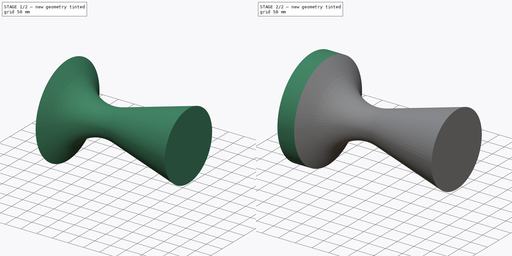
[diagram: build sequence overview — one tinted view per stage of 2, left to right]
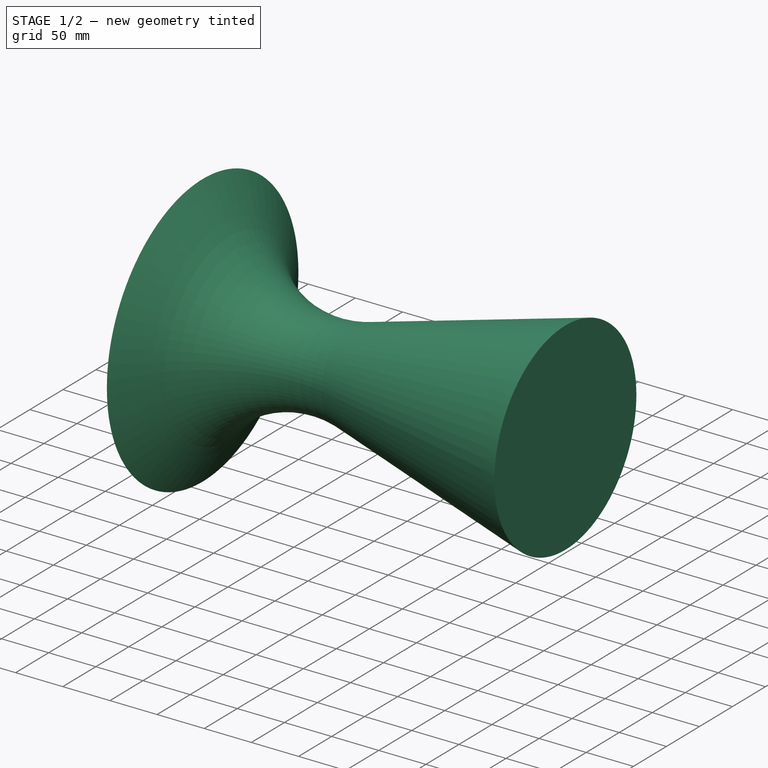
[diagram: stage 1 of 2 — iso view after this stage's code; geometry added in this stage tinted green]
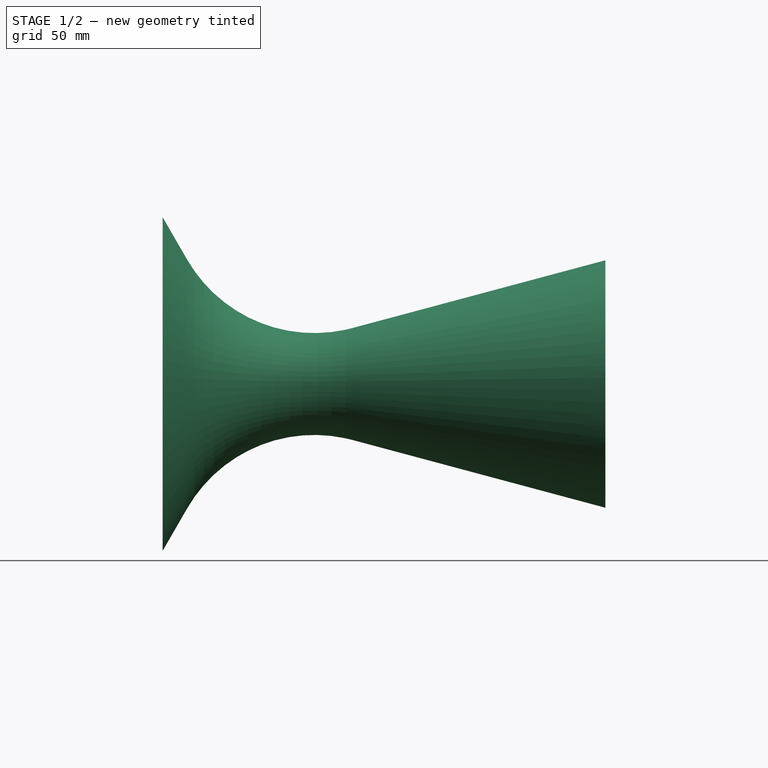
[diagram: stage 1 of 2 — front view after this stage's code; geometry added in this stage tinted green]
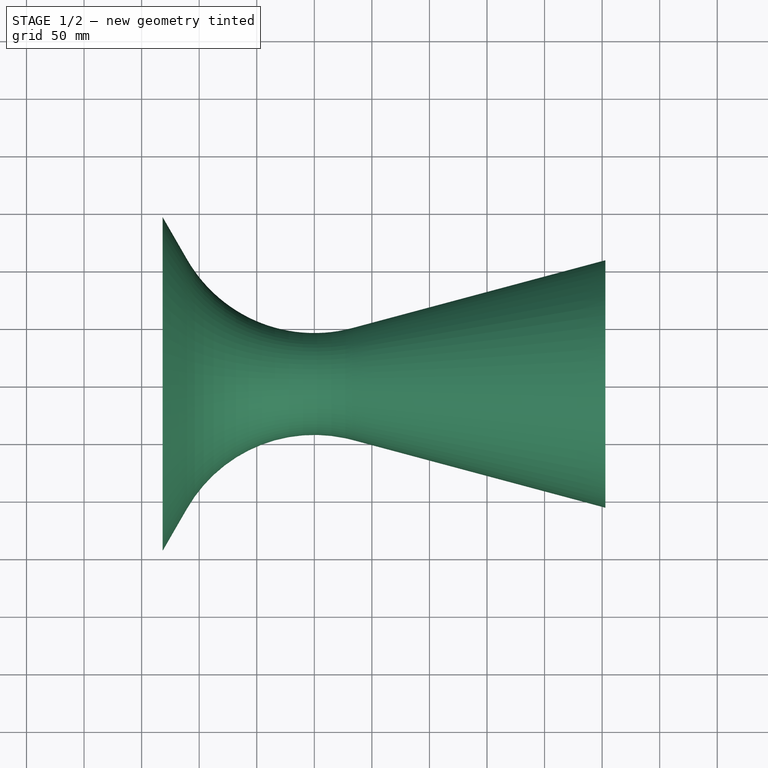
[diagram: stage 1 of 2 — top view after this stage's code; geometry added in this stage tinted green]
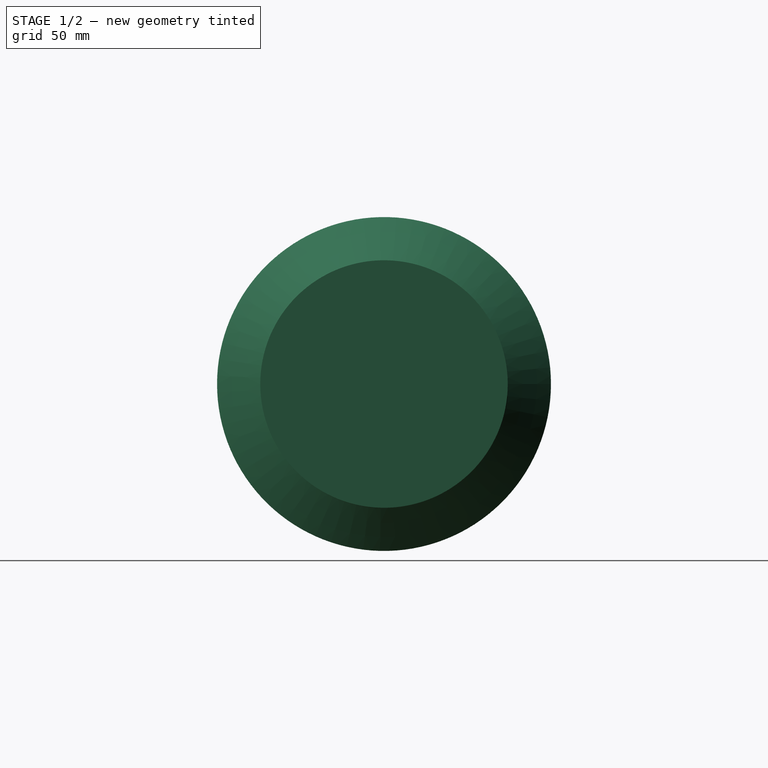
[diagram: stage 1 of 2 — right view after this stage's code; geometry added in this stage tinted green]
FCSTD DOCUMENT  (FreeCAD 0.18R15991 (Git))
Label: Nozzle_1
License: All rights reserved
LicenseURL: http://en.wikipedia.org/wiki/All_rights_reserved
objects: Sketcher::SketchObject×1, PartDesign::Revolution×1, PartDesign::Pad×1, PartDesign::Body×1, App::FeaturePython×1
note: 6 computed .brp shape members not serialized (recipe doc carries the construction recipe); baked Part::Feature solids carry a one-line shape summary decoded from their .brp

FEATURE [Sketcher::SketchObject] Sketch
  MapMode = 5
  Support = -> [XY_Plane]
  expr: Constraints[20] = 88.5 / 2
  expr: Constraints[6] = 290 / 2
  expr: Constraints[7] = 215 / 2
  sketch-geometry (7):
    g0: ArcOfCircle CenterX=0 CenterY=171.75 CenterZ=0 NormalX=0 NormalY=0 NormalZ=1 AngleXU=0 Radius=127.5 StartAngle=3.66519 EndAngle=4.97419
    g1: LineSegment StartX=-131.78 StartY=145 StartZ=0 EndX=-110.418 EndY=108 EndZ=0
    g2: LineSegment StartX=32.9994 StartY=48.5945 StartZ=0 EndX=252.838 EndY=107.5 EndZ=0
    g3: LineSegment StartX=-131.78 StartY=145 StartZ=0 EndX=-131.78 EndY=0 EndZ=0
    g4: LineSegment StartX=252.838 StartY=107.5 StartZ=0 EndX=252.838 EndY=0 EndZ=0
    g5: LineSegment StartX=-131.78 StartY=0 StartZ=0 EndX=252.838 EndY=0 EndZ=0
    g6: LineSegment [constr] StartX=-131.78 StartY=44.25 StartZ=0 EndX=252.838 EndY=44.25 EndZ=0
  constraints (21):
    c: PointOnObject(g0,g-2)
    c: Radius(g0) = 127.5
    c: Angle(g-1,g2) = 0.261799
    c: Angle(g1,g-1) = 1.0472
    c: Tangent(g1,g0) = -1.5708
    c: Tangent(g0,g2) = -1.5708
    c: DistanceY(g-1,g1) = 145
    c: DistanceY(g-1,g2) = 107.5
    c: Vertical(g3)
    c: Coincident(g3,g1)
    c: Vertical(g4)
    c: Coincident(g4,g2)
    c: PointOnObject(g4,g-1)
    c: PointOnObject(g3,g-1)
    c: Coincident(g5,g4)
    c: Coincident(g5,g3)
    c: Horizontal(g6)
    c: PointOnObject(g6,g4)
    c: PointOnObject(g6,g3)
    c: Tangent(g6,g0)
    c: Distance(g-1,g6) = 44.25
FEATURE [PartDesign::Revolution] Revolution
  Angle = 360
  Axis = (1,0,0)
  Base = (0,0,0)
  Profile = -> Sketch
  ReferenceAxis = -> X_Axis
  Refine = true
  Reversed = true
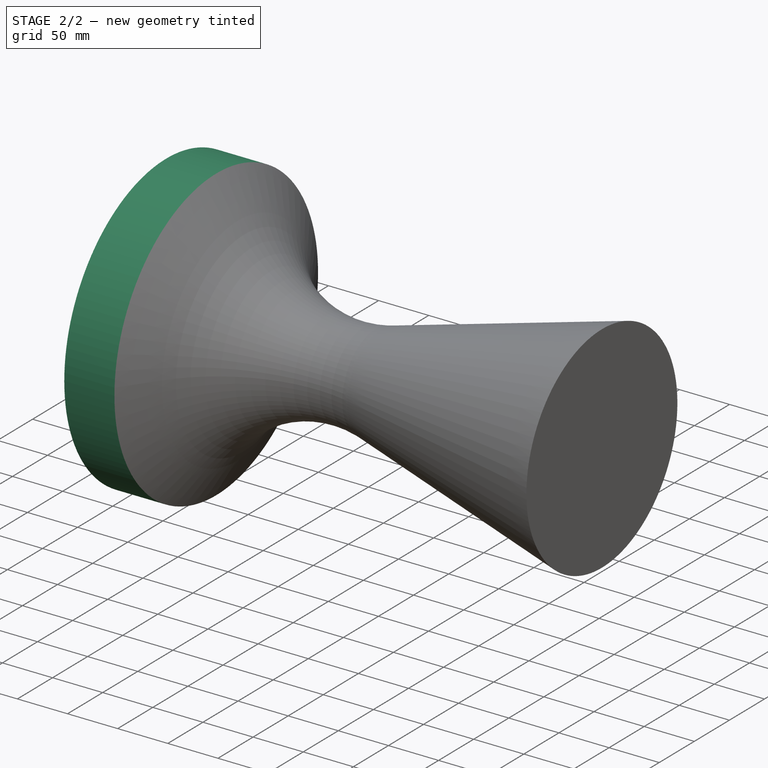
[diagram: stage 2 of 2 — iso view after this stage's code; geometry added in this stage tinted green]
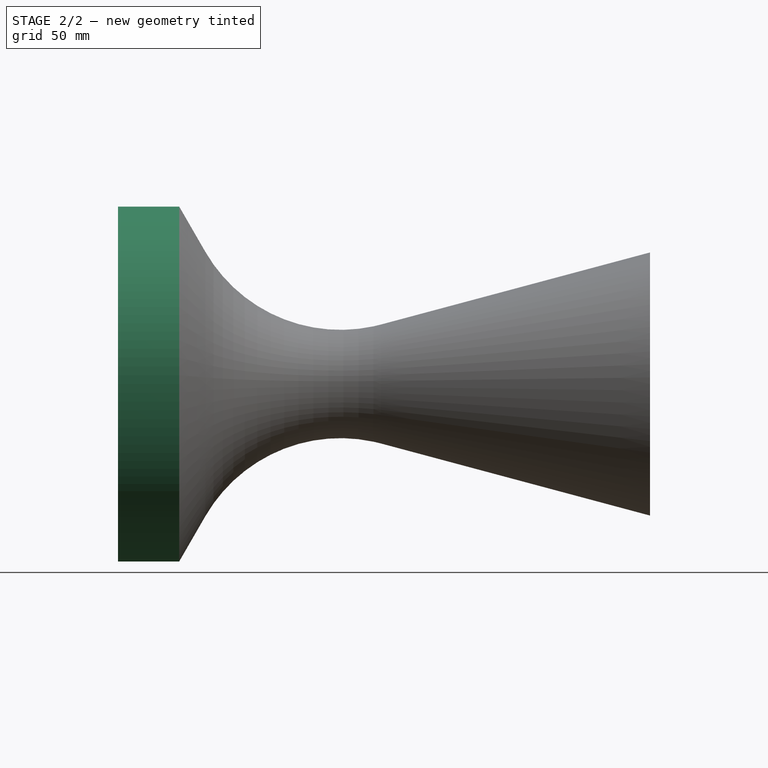
[diagram: stage 2 of 2 — front view after this stage's code; geometry added in this stage tinted green]
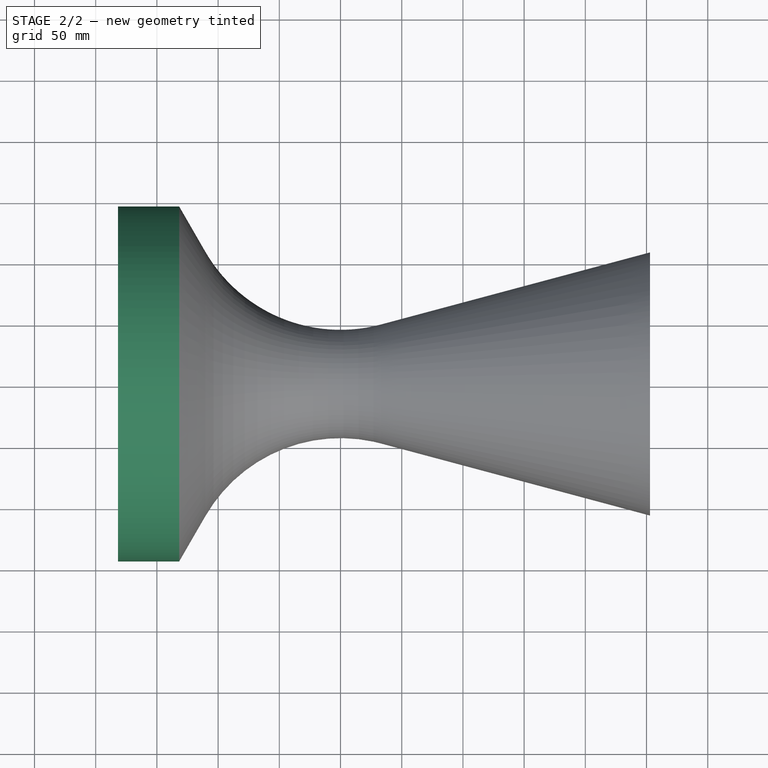
[diagram: stage 2 of 2 — top view after this stage's code; geometry added in this stage tinted green]
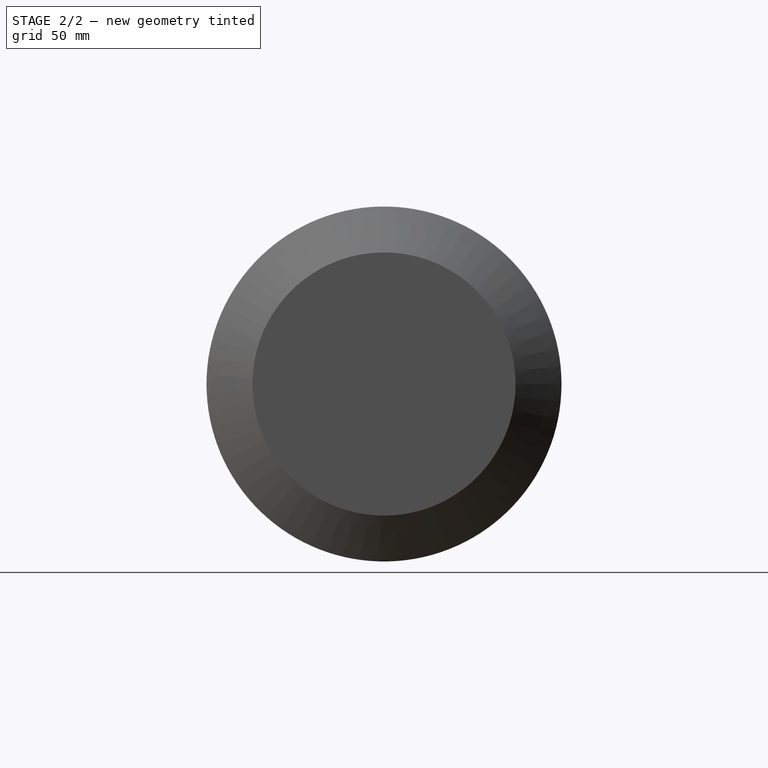
[diagram: stage 2 of 2 — right view after this stage's code; geometry added in this stage tinted green]
FEATURE [PartDesign::Pad] Pad
  BaseFeature = -> Revolution
  Length = 50
  Length2 = 100
  Profile = -> Revolution [Face4]
  Refine = true
  Type = 0
FEATURE [PartDesign::Body] Body
  Group = -> [Sketch,Revolution,Pad]
  Origin = -> Origin
  Tip = -> Pad
FEATURE [App::FeaturePython] Dimension  label="Distance"  # Draft dimension (typed FeaturePython)
  Diameter = false
  Dimline = (35.5289,0,0)
  Direction = (0,0,0)
  Distance = 434.618
  End = (252.838,0,0)
  Normal = (0,0,-1)
  Start = (-181.78,0,0)
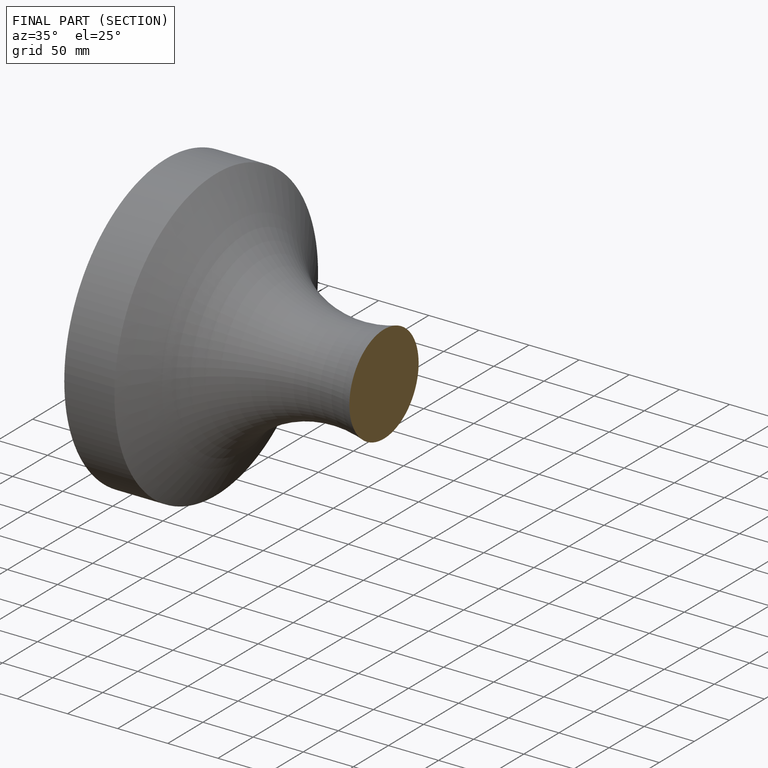
[diagram: finished part — half-section view (interior)]
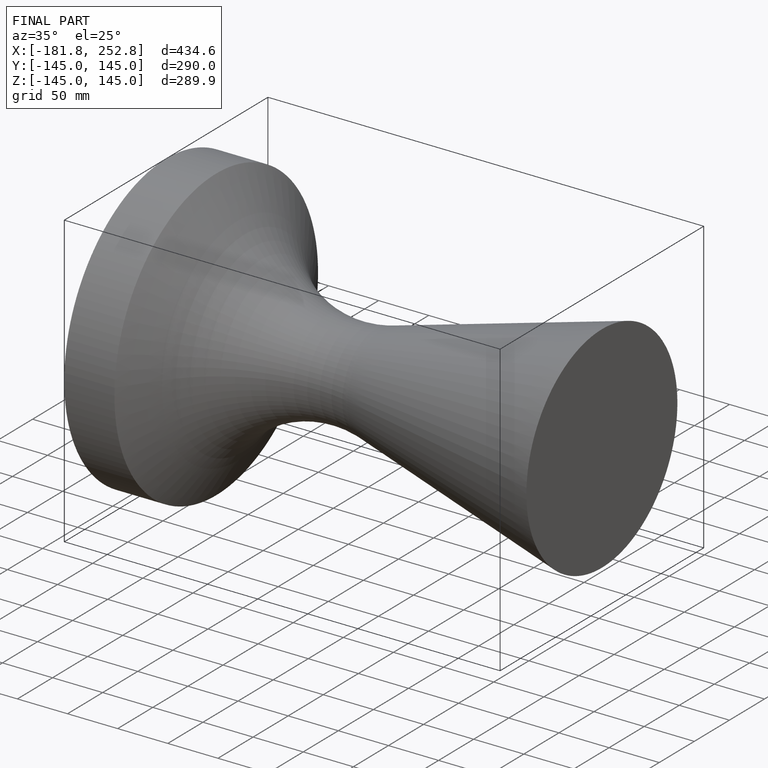
[diagram: finished part — iso view with bounding-box wireframe]
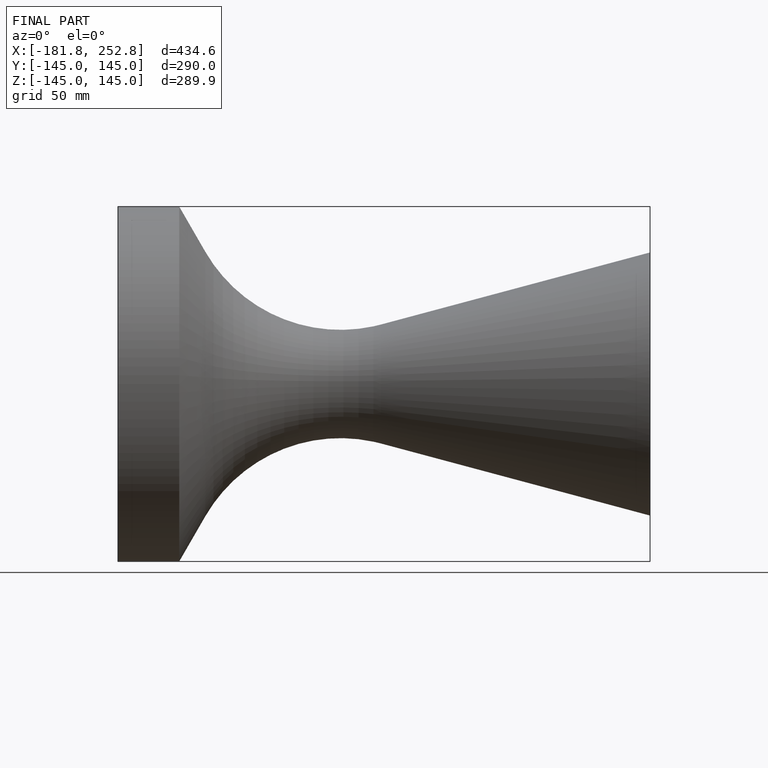
[diagram: finished part — front view with bounding-box wireframe]
